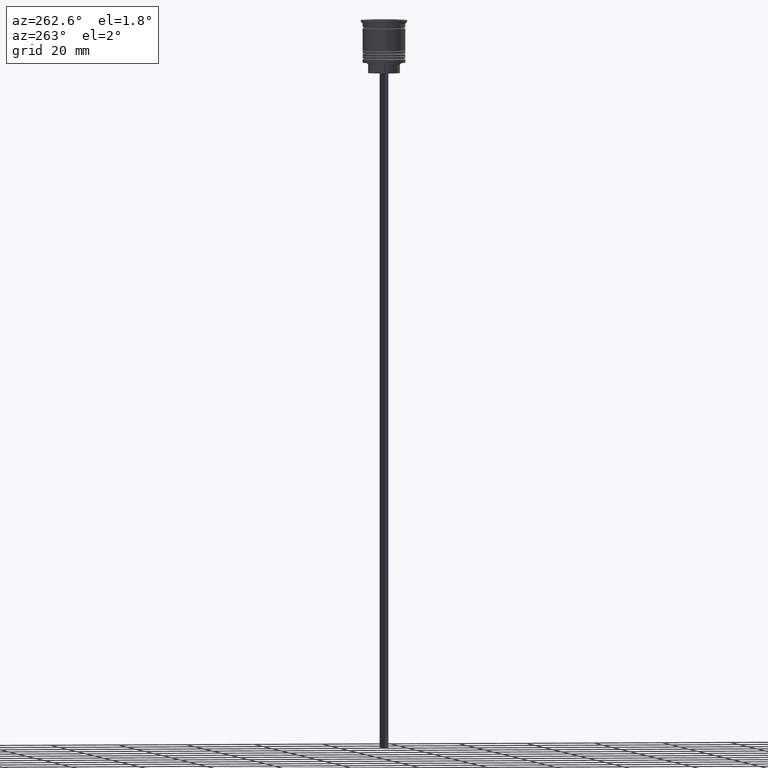
[diagram: clean part render]
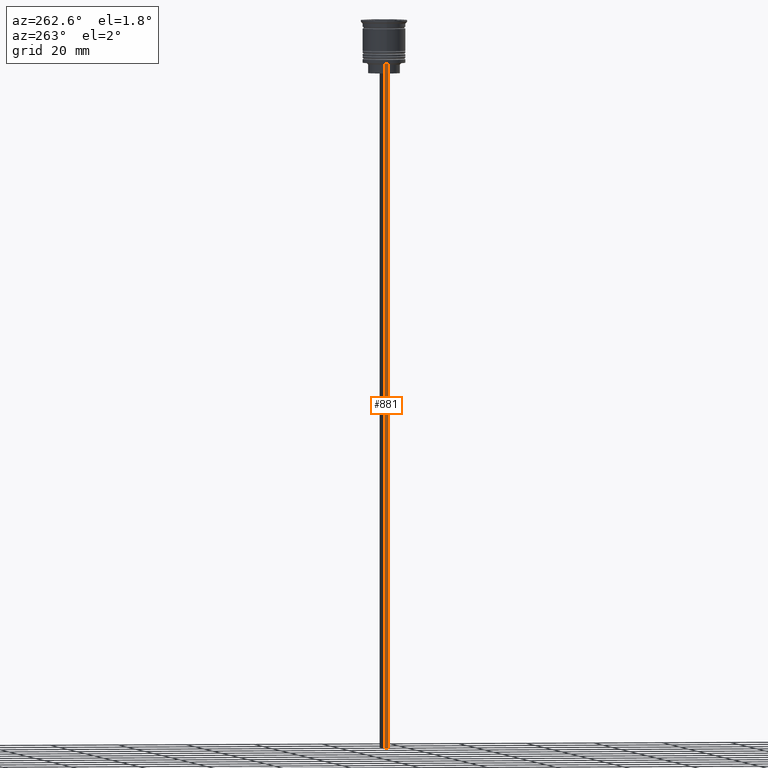
[diagram: same view with one face highlighted and labeled with its STEP entity id]
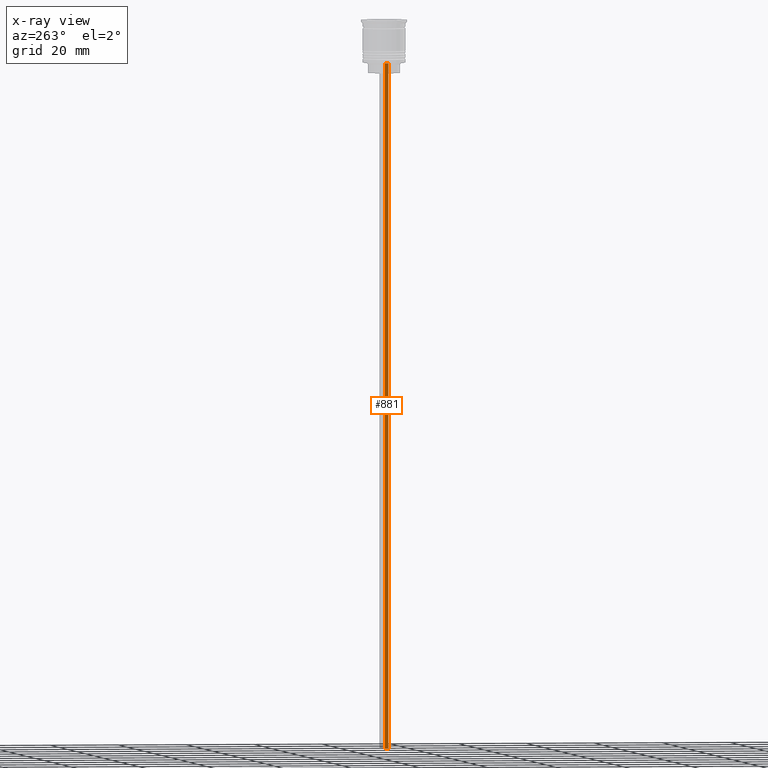
[diagram: x-ray of the same camera — body ghosted, the highlighted face saturated]
A machine part, auxiliary view. The second image highlights one B-rep face of the part: STEP entity #881.
The next image is the same camera in x-ray: the body ghosted, the highlighted face saturated — about 0% of this face is hidden behind the body in this view.
In plain terms, the highlighted planar face has unit normal (-1, 0, 0).
Its self-contained STEP definition (entity closure, byte-faithful):
#4 = EDGE_CURVE ( 'NONE', #890, #1723, #197, .T. ) ;
#85 = CARTESIAN_POINT ( 'NONE',  ( -5.999999999999983125, -0.5000000000000017764, -212.5000000000000284 ) ) ;
#96 = DIRECTION ( 'NONE',  ( 0.000000000000000000, 1.000000000000000000, 0.000000000000000000 ) ) ;
#197 = LINE ( 'NONE', #2187, #1772 ) ;
#300 = ORIENTED_EDGE ( 'NONE', *, *, #2173, .F. ) ;
#422 = LINE ( 'NONE', #1662, #1827 ) ;
#695 = FACE_OUTER_BOUND ( 'NONE', #1795, .T. ) ;
#735 = CARTESIAN_POINT ( 'NONE',  ( -5.999999999999983125, -0.5000000000000017764, -12.50000000000000000 ) ) ;
#801 = AXIS2_PLACEMENT_3D ( 'NONE', #1420, #1955, #1980 ) ;
#837 = LINE ( 'NONE', #85, #1507 ) ;
#881 = ADVANCED_FACE ( 'NONE', ( #695 ), #1802, .T. ) ;
#890 = VERTEX_POINT ( 'NONE', #735 ) ;
#980 = LINE ( 'NONE', #1332, #1197 ) ;
#992 = CARTESIAN_POINT ( 'NONE',  ( -5.999999999999983125, 0.4999999999999982792, -212.5000000000000284 ) ) ;
#1101 = EDGE_CURVE ( 'NONE', #1723, #1202, #837, .T. ) ;
#1149 = DIRECTION ( 'NONE',  ( 0.000000000000000000, -1.000000000000000000, 0.000000000000000000 ) ) ;
#1157 = CARTESIAN_POINT ( 'NONE',  ( -5.999999999999983125, 0.4999999999999985012, -12.50000000000000000 ) ) ;
#1197 = VECTOR ( 'NONE', #1149, 1000.000000000000000 ) ;
#1202 = VERTEX_POINT ( 'NONE', #992 ) ;
#1228 = ORIENTED_EDGE ( 'NONE', *, *, #1101, .F. ) ;
#1267 = ORIENTED_EDGE ( 'NONE', *, *, #4, .F. ) ;
#1332 = CARTESIAN_POINT ( 'NONE',  ( -5.999999999999983125, -0.5000000000000017764, -12.50000000000000000 ) ) ;
#1420 = CARTESIAN_POINT ( 'NONE',  ( -5.999999999999983125, -0.5000000000000017764, -0.4584054212077061097 ) ) ;
#1507 = VECTOR ( 'NONE', #96, 1000.000000000000000 ) ;
#1601 = ORIENTED_EDGE ( 'NONE', *, *, #1753, .T. ) ;
#1617 = DIRECTION ( 'NONE',  ( 0.000000000000000000, 0.000000000000000000, -1.000000000000000000 ) ) ;
#1662 = CARTESIAN_POINT ( 'NONE',  ( -5.999999999999983125, 0.4999999999999982792, -0.4584054212077061097 ) ) ;
#1695 = DIRECTION ( 'NONE',  ( 0.000000000000000000, 0.000000000000000000, -1.000000000000000000 ) ) ;
#1723 = VERTEX_POINT ( 'NONE', #1858 ) ;
#1753 = EDGE_CURVE ( 'NONE', #2170, #1202, #422, .T. ) ;
#1772 = VECTOR ( 'NONE', #1617, 1000.000000000000000 ) ;
#1795 = EDGE_LOOP ( 'NONE', ( #300, #1601, #1228, #1267 ) ) ;
#1802 = PLANE ( 'NONE',  #801 ) ;
#1827 = VECTOR ( 'NONE', #1695, 1000.000000000000000 ) ;
#1858 = CARTESIAN_POINT ( 'NONE',  ( -5.999999999999983125, -0.5000000000000017764, -212.5000000000000284 ) ) ;
#1955 = DIRECTION ( 'NONE',  ( -1.000000000000000000, 0.000000000000000000, 0.000000000000000000 ) ) ;
#1980 = DIRECTION ( 'NONE',  ( 0.000000000000000000, 0.000000000000000000, 1.000000000000000000 ) ) ;
#2170 = VERTEX_POINT ( 'NONE', #1157 ) ;
#2173 = EDGE_CURVE ( 'NONE', #2170, #890, #980, .T. ) ;
#2187 = CARTESIAN_POINT ( 'NONE',  ( -5.999999999999983125, -0.5000000000000017764, -0.4584054212077061097 ) ) ;